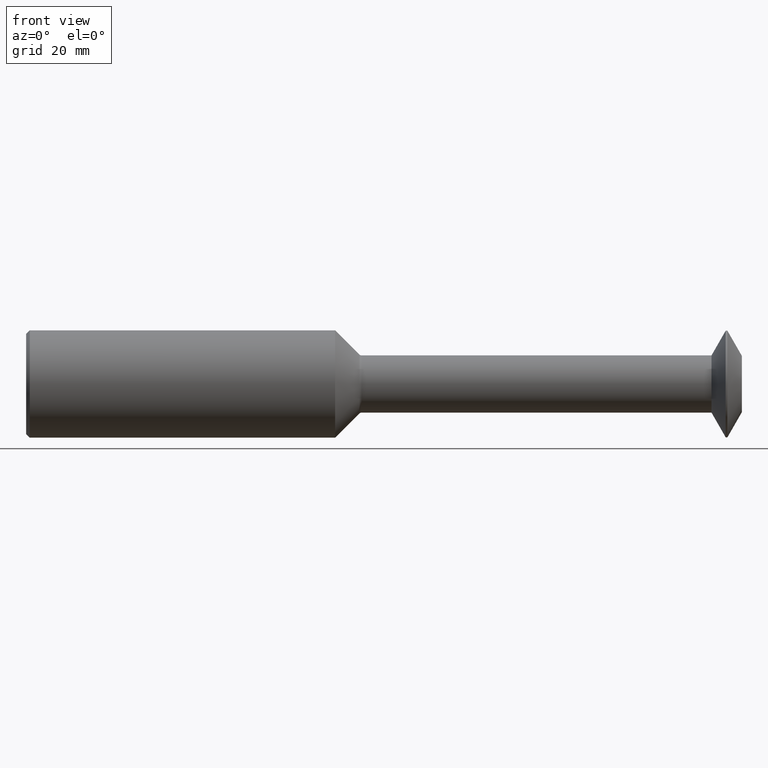
[diagram: clean part render]
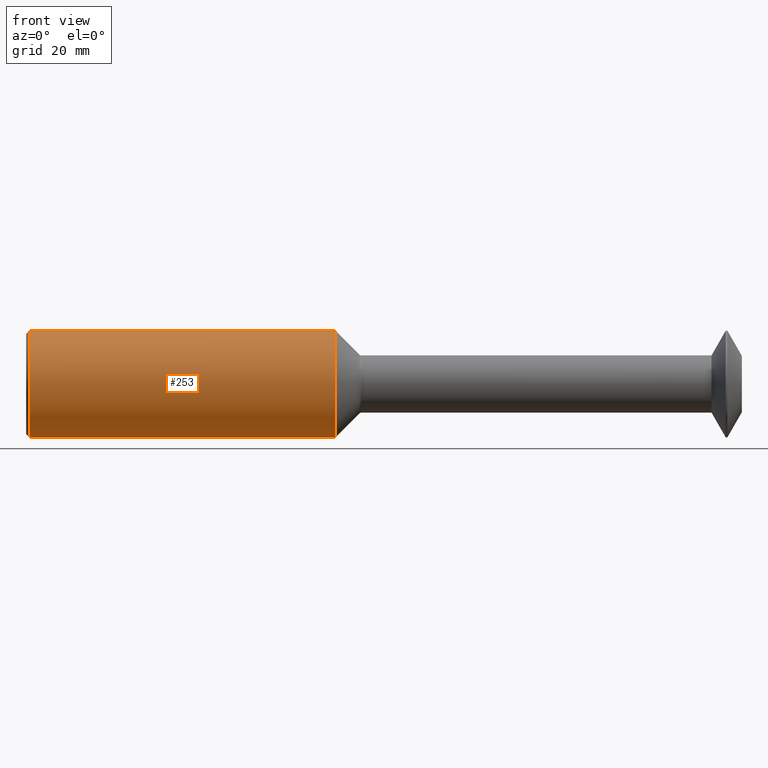
[diagram: same view with one face highlighted and labeled with its STEP entity id]
A machine part, front view. The second image highlights one B-rep face of the part: STEP entity #253.
In plain terms, the highlighted cylindrical surface (partial cylindrical patch) has radius 9.5212 mm, axis along (-1, -0, -0).
Its self-contained STEP definition (entity closure, byte-faithful):
#15 = CYLINDRICAL_SURFACE ( 'NONE', #482, 0.3748500000000000165 ) ;
#18 = DIRECTION ( 'NONE',  ( 0.0000000000000000000, 0.0000000000000000000, 1.000000000000000000 ) ) ;
#21 = CARTESIAN_POINT ( 'NONE',  ( 0.02500000000000062589, 0.0000000000000000000, 0.3748500000000000165 ) ) ;
#24 = ORIENTED_EDGE ( 'NONE', *, *, #354, .F. ) ;
#30 = DIRECTION ( 'NONE',  ( 0.0000000000000000000, 0.0000000000000000000, -1.000000000000000000 ) ) ;
#72 = DIRECTION ( 'NONE',  ( 0.0000000000000000000, 0.0000000000000000000, 1.000000000000000000 ) ) ;
#76 = CARTESIAN_POINT ( 'NONE',  ( 2.158436715156969221, 0.0000000000000000000, 0.0000000000000000000 ) ) ;
#81 = EDGE_CURVE ( 'NONE', #298, #99, #481, .T. ) ;
#88 = DIRECTION ( 'NONE',  ( -1.000000000000000000, -0.0000000000000000000, -0.0000000000000000000 ) ) ;
#99 = VERTEX_POINT ( 'NONE', #267 ) ;
#106 = DIRECTION ( 'NONE',  ( -1.000000000000000000, -0.0000000000000000000, -0.0000000000000000000 ) ) ;
#123 = EDGE_LOOP ( 'NONE', ( #24, #184, #190, #313 ) ) ;
#130 = VERTEX_POINT ( 'NONE', #431 ) ;
#144 = CARTESIAN_POINT ( 'NONE',  ( 0.0000000000000000000, 0.0000000000000000000, 0.3748500000000000165 ) ) ;
#155 = DIRECTION ( 'NONE',  ( -1.000000000000000000, -0.0000000000000000000, -0.0000000000000000000 ) ) ;
#165 = VECTOR ( 'NONE', #88, 39.37007874015748143 ) ;
#171 = AXIS2_PLACEMENT_3D ( 'NONE', #76, #155, #18 ) ;
#184 = ORIENTED_EDGE ( 'NONE', *, *, #269, .T. ) ;
#190 = ORIENTED_EDGE ( 'NONE', *, *, #364, .T. ) ;
#199 = LINE ( 'NONE', #144, #203 ) ;
#203 = VECTOR ( 'NONE', #106, 39.37007874015748143 ) ;
#229 = CARTESIAN_POINT ( 'NONE',  ( 0.0000000000000000000, 0.0000000000000000000, 0.0000000000000000000 ) ) ;
#253 = ADVANCED_FACE ( 'NONE', ( #352 ), #15, .T. ) ;
#267 = CARTESIAN_POINT ( 'NONE',  ( 0.02500000000000062589, 4.590588526603853748E-17, -0.3748500000000000165 ) ) ;
#269 = EDGE_CURVE ( 'NONE', #130, #501, #466, .T. ) ;
#285 = CARTESIAN_POINT ( 'NONE',  ( 0.0000000000000000000, 4.590588526603853748E-17, -0.3748500000000000165 ) ) ;
#298 = VERTEX_POINT ( 'NONE', #21 ) ;
#313 = ORIENTED_EDGE ( 'NONE', *, *, #81, .T. ) ;
#322 = CARTESIAN_POINT ( 'NONE',  ( 2.158436715156969221, 0.0000000000000000000, 0.3748500000000000165 ) ) ;
#341 = DIRECTION ( 'NONE',  ( -1.000000000000000000, -0.0000000000000000000, -0.0000000000000000000 ) ) ;
#343 = LINE ( 'NONE', #285, #165 ) ;
#352 = FACE_OUTER_BOUND ( 'NONE', #123, .T. ) ;
#354 = EDGE_CURVE ( 'NONE', #130, #99, #343, .T. ) ;
#364 = EDGE_CURVE ( 'NONE', #501, #298, #199, .T. ) ;
#366 = DIRECTION ( 'NONE',  ( 1.000000000000000000, 0.0000000000000000000, 0.0000000000000000000 ) ) ;
#367 = AXIS2_PLACEMENT_3D ( 'NONE', #411, #366, #30 ) ;
#411 = CARTESIAN_POINT ( 'NONE',  ( 0.02500000000000062589, 0.0000000000000000000, 0.0000000000000000000 ) ) ;
#431 = CARTESIAN_POINT ( 'NONE',  ( 2.158436715156969221, 4.590588526603853748E-17, -0.3748500000000000165 ) ) ;
#466 = CIRCLE ( 'NONE', #171, 0.3748500000000000165 ) ;
#481 = CIRCLE ( 'NONE', #367, 0.3748500000000000165 ) ;
#482 = AXIS2_PLACEMENT_3D ( 'NONE', #229, #341, #72 ) ;
#501 = VERTEX_POINT ( 'NONE', #322 ) ;